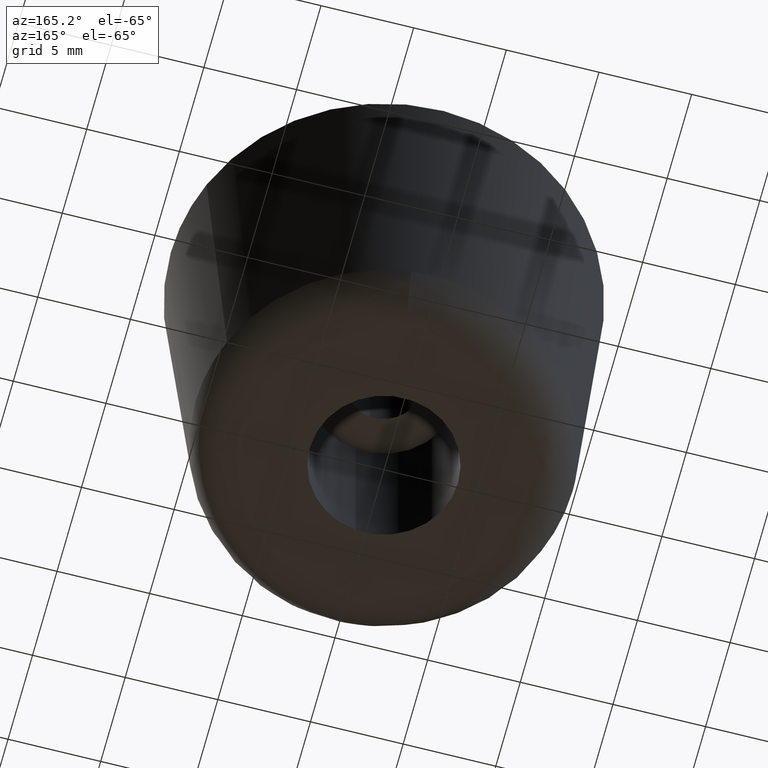
[diagram: clean part render]
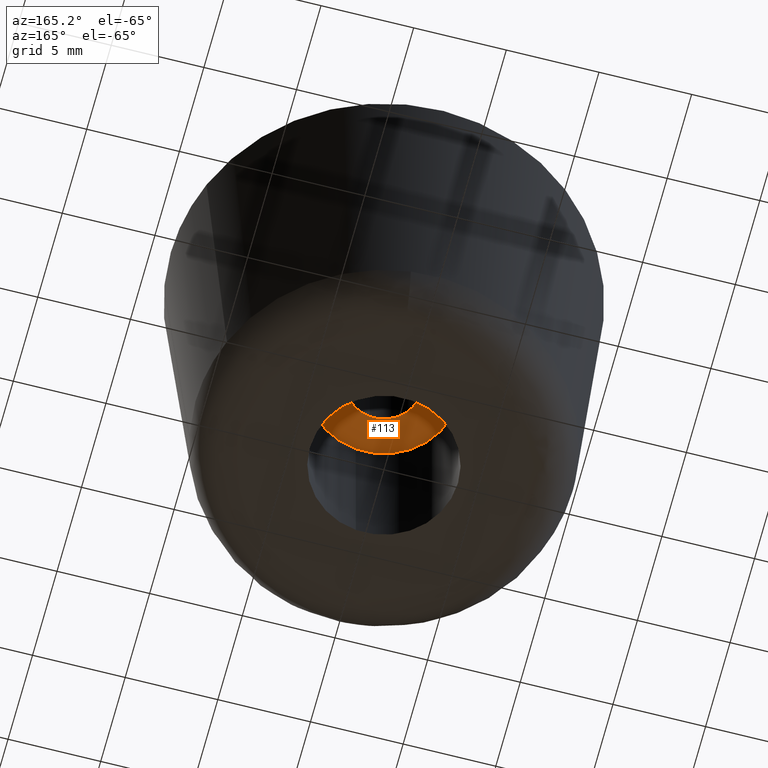
[diagram: same view with one face highlighted and labeled with its STEP entity id]
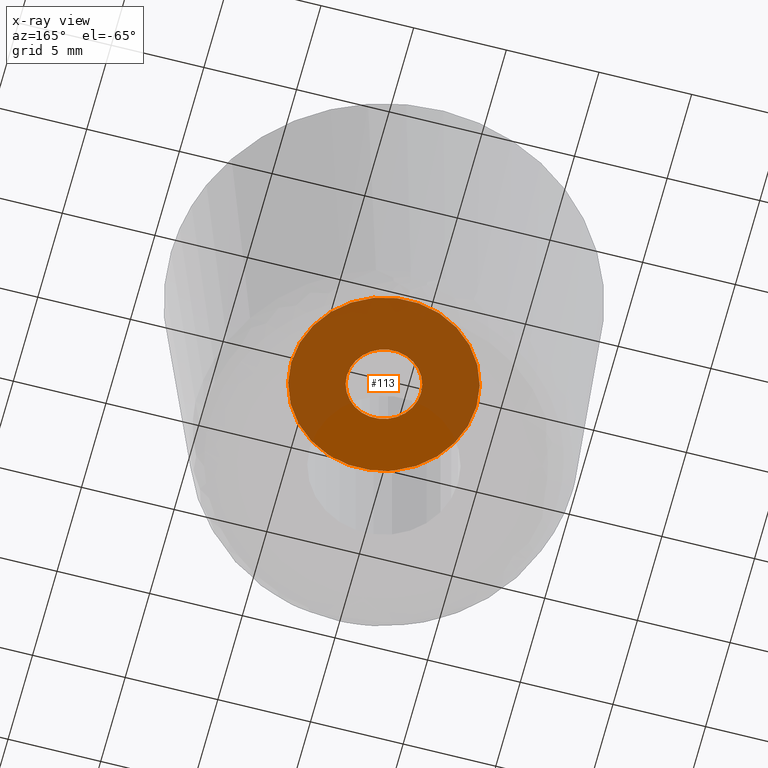
[diagram: x-ray of the same camera — body ghosted, the highlighted face saturated]
A machine part, auxiliary view. The second image highlights one B-rep face of the part: STEP entity #113.
The next image is the same camera in x-ray: the body ghosted, the highlighted face saturated — about 70% of this face is hidden behind the body in this view.
In plain terms, the highlighted planar face has unit normal (0, 0, 1).
Its self-contained STEP definition (entity closure, byte-faithful):
#113=ADVANCED_FACE('',(#144,#145),#143,.F.);
#143=PLANE('',#347);
#144=FACE_OUTER_BOUND('',#348,.T.);
#145=FACE_BOUND('',#349,.T.);
#344=CARTESIAN_POINT('',(-6.50000000000E+000,-1.03923048454E+001,1.00000000000E+001));
#345=DIRECTION('',(0.00000000000E+000,0.00000000000E+000,1.00000000000E+000));
#346=DIRECTION('',(1.00000000000E+000,0.00000000000E+000,0.00000000000E+000));
#347=AXIS2_PLACEMENT_3D('',#344,#345,#346);
#348=EDGE_LOOP('',(#504,#505,#506));
#349=EDGE_LOOP('',(#507,#508,#509));
#504=ORIENTED_EDGE('',*,*,#624,.T.);
#505=ORIENTED_EDGE('',*,*,#625,.T.);
#506=ORIENTED_EDGE('',*,*,#626,.T.);
#507=ORIENTED_EDGE('',*,*,#627,.F.);
#508=ORIENTED_EDGE('',*,*,#628,.F.);
#509=ORIENTED_EDGE('',*,*,#629,.F.);
#624=EDGE_CURVE('',#720,#721,#722,.T.);
#625=EDGE_CURVE('',#721,#728,#729,.T.);
#626=EDGE_CURVE('',#728,#720,#735,.T.);
#627=EDGE_CURVE('',#741,#742,#743,.T.);
#628=EDGE_CURVE('',#749,#741,#750,.T.);
#629=EDGE_CURVE('',#742,#749,#756,.T.);
#720=VERTEX_POINT('',#1114);
#721=VERTEX_POINT('',#1115);
#722=CIRCLE('',#1119,5.00000000000E+000);
#728=VERTEX_POINT('',#1120);
#729=CIRCLE('',#1124,5.00000000000E+000);
#735=CIRCLE('',#1128,5.00000000000E+000);
#741=VERTEX_POINT('',#1129);
#742=VERTEX_POINT('',#1130);
#743=CIRCLE('',#1134,2.00000000000E+000);
#749=VERTEX_POINT('',#1135);
#750=CIRCLE('',#1139,2.00000000000E+000);
#756=CIRCLE('',#1143,2.00000000000E+000);
#1114=CARTESIAN_POINT('',(-5.00000000000E+000,3.33066907388E-016,1.00000000000E+001));
#1115=CARTESIAN_POINT('',(-5.91028345388E-001,4.96494566888E+000,1.00000000000E+001));
#1116=CARTESIAN_POINT('',(9.92983473225E-013,4.52970994047E-013,1.00000000000E+001));
#1117=DIRECTION('',(-2.70613244950E-013,-4.00373369238E-014,-1.00000000000E+000));
#1118=DIRECTION('',(-1.00000000000E+000,-9.01501095996E-014,2.70613244950E-013));
#1119=AXIS2_PLACEMENT_3D('',#1116,#1117,#1118);
#1120=CARTESIAN_POINT('',(5.90170182406E-001,-4.96504774960E+000,1.00000000000E+001));
#1121=CARTESIAN_POINT('',(9.92983473225E-013,4.52970994047E-013,1.00000000000E+001));
#1122=DIRECTION('',(-2.70613244950E-013,-4.00373369238E-014,-1.00000000000E+000));
#1123=DIRECTION('',(-1.00000000000E+000,-9.01501095996E-014,2.70613244950E-013));
#1124=AXIS2_PLACEMENT_3D('',#1121,#1122,#1123);
#1125=CARTESIAN_POINT('',(9.92983473225E-013,4.52970994047E-013,1.00000000000E+001));
#1126=DIRECTION('',(-2.70613244950E-013,-4.00373369238E-014,-1.00000000000E+000));
#1127=DIRECTION('',(-1.00000000000E+000,-9.01501095996E-014,2.70613244950E-013));
#1128=AXIS2_PLACEMENT_3D('',#1125,#1126,#1127);
#1129=CARTESIAN_POINT('',(2.36068050828E-001,-1.98601910247E+000,1.00000000000E+001));
#1130=CARTESIAN_POINT('',(-1.99999999999E+000,-4.16333634234E-016,1.00000000000E+001));
#1131=CARTESIAN_POINT('',(2.53885801271E-012,1.15407683410E-012,1.00000000000E+001));
#1132=DIRECTION('',(1.06837965500E-012,1.58296784736E-013,-1.00000000000E+000));
#1133=DIRECTION('',(-1.00000000000E+000,-5.76871883595E-013,-1.06837965500E-012));
#1134=AXIS2_PLACEMENT_3D('',#1131,#1132,#1133);
#1135=CARTESIAN_POINT('',(-2.36411790210E-001,1.98597821374E+000,1.00000000000E+001));
#1136=CARTESIAN_POINT('',(2.53885801271E-012,1.15407683410E-012,1.00000000000E+001));
#1137=DIRECTION('',(1.06837965500E-012,1.58296784736E-013,-1.00000000000E+000));
#1138=DIRECTION('',(-1.00000000000E+000,-5.76871883595E-013,-1.06837965500E-012));
#1139=AXIS2_PLACEMENT_3D('',#1136,#1137,#1138);
#1140=CARTESIAN_POINT('',(2.53885801271E-012,1.15407683410E-012,1.00000000000E+001));
#1141=DIRECTION('',(1.06837965500E-012,1.58296784736E-013,-1.00000000000E+000));
#1142=DIRECTION('',(-1.00000000000E+000,-5.76871883595E-013,-1.06837965500E-012));
#1143=AXIS2_PLACEMENT_3D('',#1140,#1141,#1142);